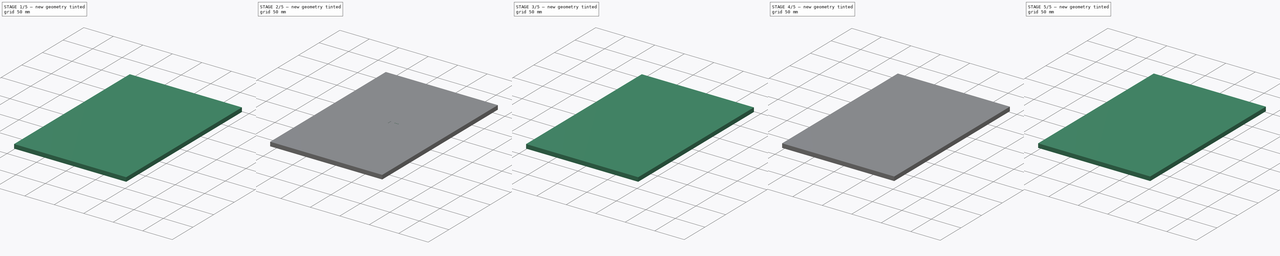
[diagram: build sequence overview — one tinted view per stage of 5, left to right]
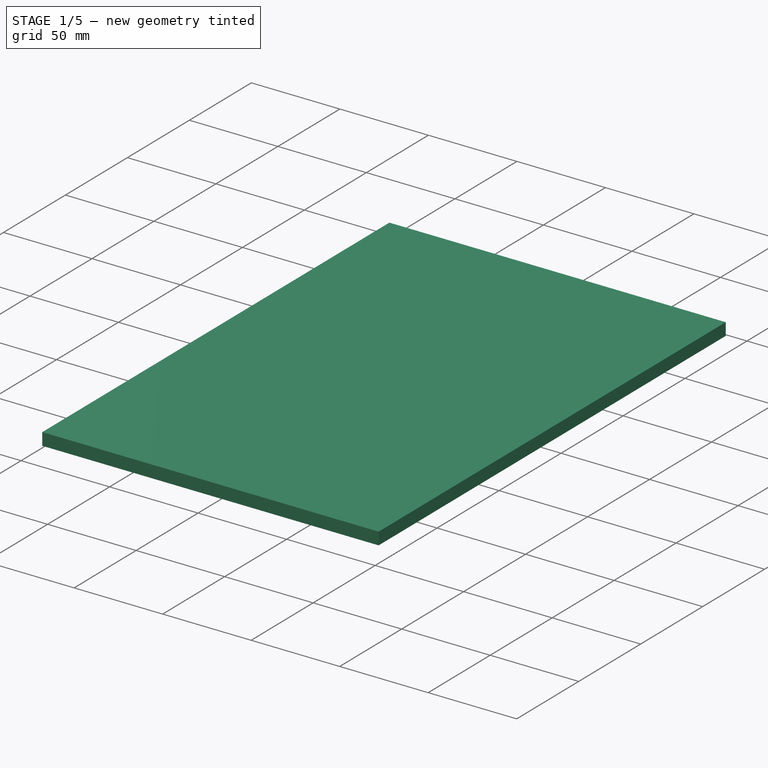
[diagram: stage 1 of 5 — iso view after this stage's code; geometry added in this stage tinted green]
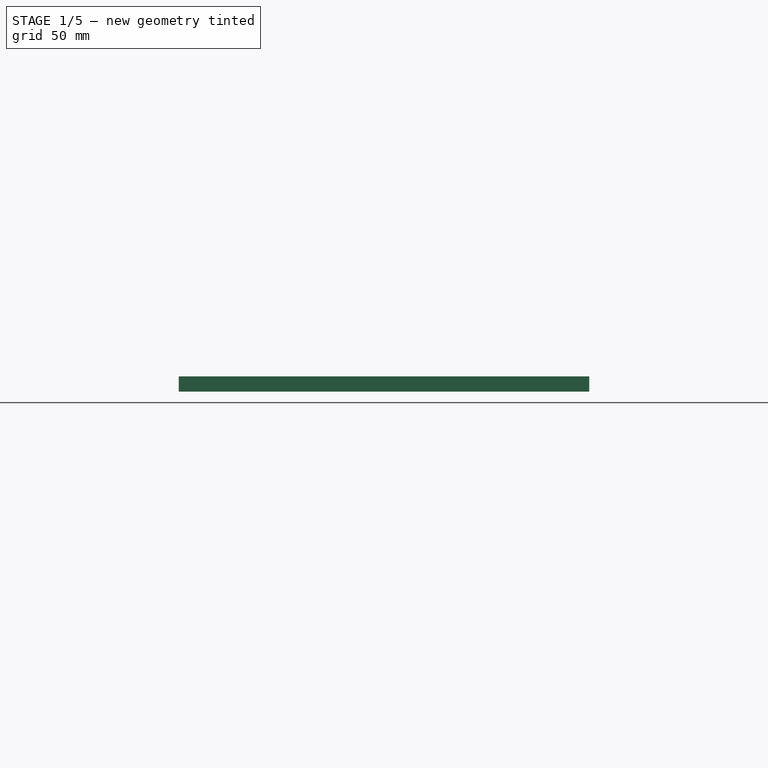
[diagram: stage 1 of 5 — front view after this stage's code; geometry added in this stage tinted green]
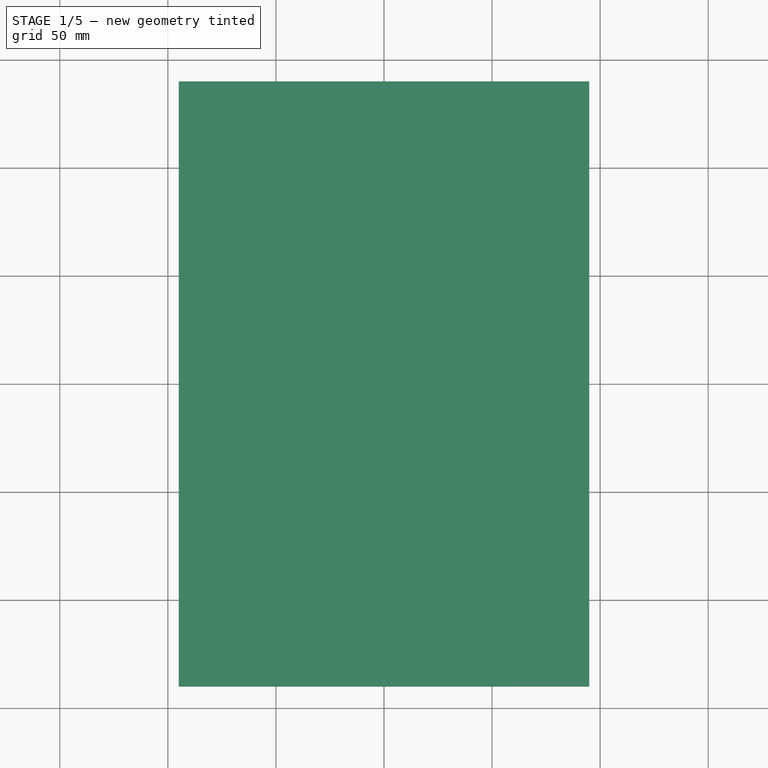
[diagram: stage 1 of 5 — top view after this stage's code; geometry added in this stage tinted green]
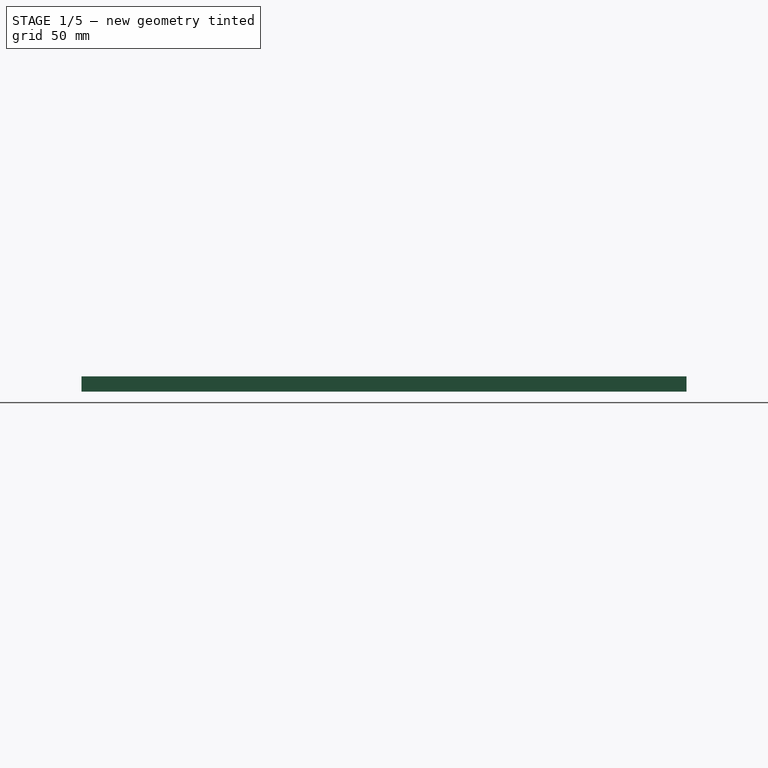
[diagram: stage 1 of 5 — right view after this stage's code; geometry added in this stage tinted green]
FCSTD DOCUMENT  (FreeCAD 0.16R6707 (Git))
Label: Alhambra-switch
License: All rights reserved
LicenseURL: http://en.wikipedia.org/wiki/All_rights_reserved
objects: Part::Feature×26, Sketcher::SketchObject×9, App::DocumentObjectGroup×7, PartDesign::Pad×5, PartDesign::Pocket×4, Part::Part2DObjectPython×2, Part::Extrusion×2, Part::MultiFuse×2, Spreadsheet::Sheet×1, Part::Cut×1, Part::FeaturePython×1
note: 61 computed .brp shape members not serialized (recipe doc carries the construction recipe); baked Part::Feature solids carry a one-line shape summary decoded from their .brp

FEATURE [Part::Feature] Clone001001  label="pins001"
  Placement = pos=(4.04,5.27,1.20028) rot=(0,0,1;0rad)
  shape: bbox 10.36 x 5.72 x 4.57 mm, 54 faces, 3 solids (baked)
FEATURE [Part::Feature] Clone002001  label="Insulators001"
  Placement = pos=(4.04,5.27,1.20028) rot=(0,0,1;0rad)
  shape: bbox 2.54 x 7.62 x 2.5 mm, 42 faces, 3 solids (baked)
FEATURE [App::DocumentObjectGroup] Group001  label="connector"
  Group = -> [Clone001001,Clone002001]
FEATURE [Sketcher::SketchObject] Sketch  label="PCB-base-sketch"
  sketch-geometry (12):
    g0: LineSegment [constr] StartX=0 StartY=0 StartZ=0 EndX=22 EndY=0 EndZ=0
    g1: LineSegment [constr] StartX=22 StartY=0 StartZ=0 EndX=22 EndY=15 EndZ=0
    g2: LineSegment [constr] StartX=22 StartY=15 StartZ=0 EndX=0 EndY=15 EndZ=0
    g3: LineSegment [constr] StartX=0 StartY=15 StartZ=0 EndX=0 EndY=0 EndZ=0
    g4: LineSegment StartX=2 StartY=15 StartZ=0 EndX=20 EndY=15 EndZ=0
    g5: LineSegment StartX=22 StartY=13 StartZ=0 EndX=22 EndY=2 EndZ=0
    g6: LineSegment StartX=20 StartY=0 StartZ=0 EndX=2 EndY=0 EndZ=0
    g7: LineSegment StartX=0 StartY=2 StartZ=0 EndX=0 EndY=13 EndZ=0
    g8: ArcOfCircle CenterX=2 CenterY=13 CenterZ=0 NormalX=0 NormalY=0 NormalZ=1 Radius=2 StartAngle=1.5708 EndAngle=3.14159
    g9: ArcOfCircle CenterX=2 CenterY=2 CenterZ=0 NormalX=0 NormalY=0 NormalZ=1 Radius=2 StartAngle=3.14159 EndAngle=4.71239
    g10: ArcOfCircle CenterX=20 CenterY=2 CenterZ=0 NormalX=0 NormalY=0 NormalZ=1 Radius=2 StartAngle=4.71239 EndAngle=6.28319
    g11: ArcOfCircle CenterX=20 CenterY=13 CenterZ=0 NormalX=0 NormalY=0 NormalZ=1 Radius=2 StartAngle=0 EndAngle=1.5708
  constraints (31):
    c: Coincident(g0,g1)
    c: Coincident(g1,g2)
    c: Coincident(g2,g3)
    c: Coincident(g3,g0)
    c: Horizontal(g0)
    c: Horizontal(g2)
    c: Vertical(g1)
    c: Vertical(g3)
    c: Coincident(g0,g-1)
    c: DistanceX(g0,g0) = 22
    c: DistanceY(g1,g1) = 15
    c: Horizontal(g4)
    c: Horizontal(g6)
    c: Vertical(g5)
    c: Vertical(g7)
    c: Tangent(g4,g8) = 1.5708
    c: Tangent(g7,g8) = 1.5708
    c: Tangent(g6,g9) = 1.5708
    c: Tangent(g7,g9) = 1.5708
    c: Tangent(g5,g10) = 1.5708
    c: Tangent(g6,g10) = 1.5708
    c: Tangent(g4,g11) = 1.5708
    c: Tangent(g5,g11) = 1.5708
    c: Equal(g8,g11)
    c: Equal(g11,g10)
    c: Equal(g10,g9)
    c: Radius(g8) = 2
    c: PointOnObject(g7,g3)
    c: PointOnObject(g4,g2)
    c: PointOnObject(g6,g0)
    c: PointOnObject(g5,g1)
FEATURE [Spreadsheet::Sheet] Spreadsheet  label="Parameters"
  cells = B2=PCB_th; C2(PCB_th)=1.2; D2=Thickness of the PCB layer; B3=Drill1_diam; C3(Drill1_diam)=1.4; D3=Drills type 1 diameter; B4=PCB_sp; C4(PCB_sp)=0.2; D4=Thickness of the PCB spacer layer; B5=PCB_ch_th_; C5(PCB_ch_th)=2; D5=Thickness of the Bottom channels; B6=PCB_top_th_; C6(PCB_top_th)=2.5; D6=Thickness of the TOP pcb
FEATURE [PartDesign::Pad] Pad  label="PCB-base"
  Length = 3.7
  Length2 = 100
  Sketch = -> Sketch
  Type = 0
  expr: Length = Parameters.PCB_top_th + Parameters.PCB_th
FEATURE [Sketcher::SketchObject] Sketch002  label="PCB-top-sketch"
  Placement = pos=(0,0,3.7) rot=(0,0,1;0rad)
  Support = -> Pad [Face10]
  sketch-geometry (4):
    g0: LineSegment StartX=0 StartY=11.9441 StartZ=0 EndX=4.8 EndY=11.9441 EndZ=0
    g1: LineSegment StartX=4.8 StartY=11.9441 StartZ=0 EndX=4.8 EndY=3.74408 EndZ=0
    g2: LineSegment StartX=4.8 StartY=3.74408 StartZ=0 EndX=0 EndY=3.74408 EndZ=0
    g3: LineSegment StartX=0 StartY=3.74408 StartZ=0 EndX=0 EndY=11.9441 EndZ=0
  constraints (11):
    c: Coincident(g0,g1)
    c: Coincident(g1,g2)
    c: Coincident(g2,g3)
    c: Coincident(g3,g0)
    c: Horizontal(g0)
    c: Horizontal(g2)
    c: Vertical(g1)
    c: Vertical(g3)
    c: PointOnObject(g0,g-2)
    c: DistanceY(g1,g1) = 8.2
    c: DistanceX(g0,g0) = 4.8
FEATURE [PartDesign::Pocket] Pocket  label="PCB-top"
  Length = 2.5
  Sketch = -> Sketch002
  Type = 0
  expr: Length = Parameters.PCB_top_th
FEATURE [App::DocumentObjectGroup] Grupo003  label="Assembly-1"
  Group = -> [Group,Clone]
FEATURE [Sketcher::SketchObject] Sketch008  label="carboard-panel-sketch"
  sketch-geometry (4):
    g0: LineSegment StartX=-95 StartY=140 StartZ=0 EndX=95 EndY=140 EndZ=0
    g1: LineSegment StartX=95 StartY=140 StartZ=0 EndX=95 EndY=-140 EndZ=0
    g2: LineSegment StartX=95 StartY=-140 StartZ=0 EndX=-95 EndY=-140 EndZ=0
    g3: LineSegment StartX=-95 StartY=-140 StartZ=0 EndX=-95 EndY=140 EndZ=0
  constraints (11):
    c: Coincident(g0,g1)
    c: Coincident(g1,g2)
    c: Coincident(g2,g3)
    c: Coincident(g3,g0)
    c: Horizontal(g0)
    c: Horizontal(g2)
    c: Vertical(g1)
    c: Vertical(g3)
    c: Symmetric(g0,g1,g-1)
    c: DistanceX(g0,g0) = 190
    c: DistanceY(g1,g1) = 280
FEATURE [PartDesign::Pad] Pad003008  label="carboard-panel"
  Length = 7
  Length2 = 100
  Sketch = -> Sketch008
  Type = 0
FEATURE [Part::Feature] Part__Feature011  label="Board-clampx4"
  Placement = pos=(-25,-109,7) rot=(0,0,1;0rad)
  shape: bbox 92 x 14 x 7.5 mm, 96 faces (baked)
FEATURE [Part::Feature] Compound002002021  label="white-pushpin004"
  Placement = pos=(52.4976,-157.033,7) rot=(0,0,1;0rad)
  shape: bbox 11.26 x 11.26 x 8.7 mm, 14 faces, 2 solids (baked)
FEATURE [Part::Feature] Compound002002023  label="white-pushpin006"
  Placement = pos=(-25.5024,-157.033,7) rot=(0,0,1;0rad)
  shape: bbox 11.26 x 11.26 x 8.7 mm, 14 faces, 2 solids (baked)
FEATURE [Part::Feature] Compound002002024001  label="female-conn"
  Placement = pos=(-17.82,-116,9.33944) rot=(0,0,-1;1.5708rad)
  shape: bbox 7.9 x 15.3 x 6.24 mm, 211 faces, 4 solids (baked)
FEATURE [Part::Feature] Compound002002024002001  label="Alhambra-switch-003"
  Placement = pos=(-17.82,-116,9.33944) rot=(0,0,-1;1.5708rad)
  shape: bbox 15 x 28 x 13.54 mm, 284 faces, 12 solids (baked)
FEATURE [Part::Feature] Compound002002024002002  label="female-conn001"
  Placement = pos=(30.18,-116,9.33944) rot=(0,0,-1;1.5708rad)
  shape: bbox 7.9 x 15.3 x 6.24 mm, 211 faces, 4 solids (baked)
FEATURE [Part::Feature] Compound002002024002003  label="Alhambra-switch-004"
  Placement = pos=(30.18,-116,9.33944) rot=(0,0,-1;1.5708rad)
  shape: bbox 15 x 28 x 13.54 mm, 284 faces, 12 solids (baked)
FEATURE [Part::Feature] Compound002002024002004  label="female-conn002"
  Placement = pos=(14.18,-116,9.33944) rot=(0,0,-1;1.5708rad)
  shape: bbox 7.9 x 15.3 x 6.24 mm, 211 faces, 4 solids (baked)
FEATURE [Part::Feature] Compound002002024002005  label="Alhambra-switch-005"
  Placement = pos=(14.18,-116,9.33944) rot=(0,0,-1;1.5708rad)
  shape: bbox 15 x 28 x 13.54 mm, 284 faces, 12 solids (baked)
FEATURE [Part::Feature] Compound002002024002006  label="female-conn003"
  Placement = pos=(-1.82,-116,9.33944) rot=(0,0,-1;1.5708rad)
  shape: bbox 7.9 x 15.3 x 6.24 mm, 211 faces, 4 solids (baked)
FEATURE [Part::Feature] Compound002002024002007  label="Alhambra-switch-006"
  Placement = pos=(-1.82,-116,9.33944) rot=(0,0,-1;1.5708rad)
  shape: bbox 15 x 28 x 13.54 mm, 284 faces, 12 solids (baked)
FEATURE [Part::Feature] Compound001  label="Alhambra-led-1"
  Placement = pos=(34.9308,-57,6.364) rot=(0,0,-1;1.5708rad)
  shape: bbox 15 x 34.9 x 12.34 mm, 444 faces, 26 solids (baked)
FEATURE [Part::Feature] Compound002002024002008  label="female-conn004"
  Placement = pos=(34.6208,-56.0586,9.11972) rot=(0,0,-1;1.5708rad)
  shape: bbox 7.9 x 15.3 x 6.24 mm, 211 faces, 4 solids (baked)
FEATURE [Part::Feature] Part__Feature012  label="Board-clampx005"
  Placement = pos=(-20.5692,-49.0586,7) rot=(0,0,1;0rad)
  shape: bbox 92 x 14 x 7.5 mm, 96 faces (baked)
FEATURE [App::DocumentObjectGroup] Grupo004  label="Assembly-2"
  Group = -> [Part__Feature011,Compound002002021,Compound002002023,Compound002002024001,Compound002002024002007,Compound002002024002006,Compound002002024002005,Compound002002024002004,Compound002002024002003,Compound002002024002002,Compound002002024002001,Compound001,Compound002002024002008,Part__Feature012,Pad003008]
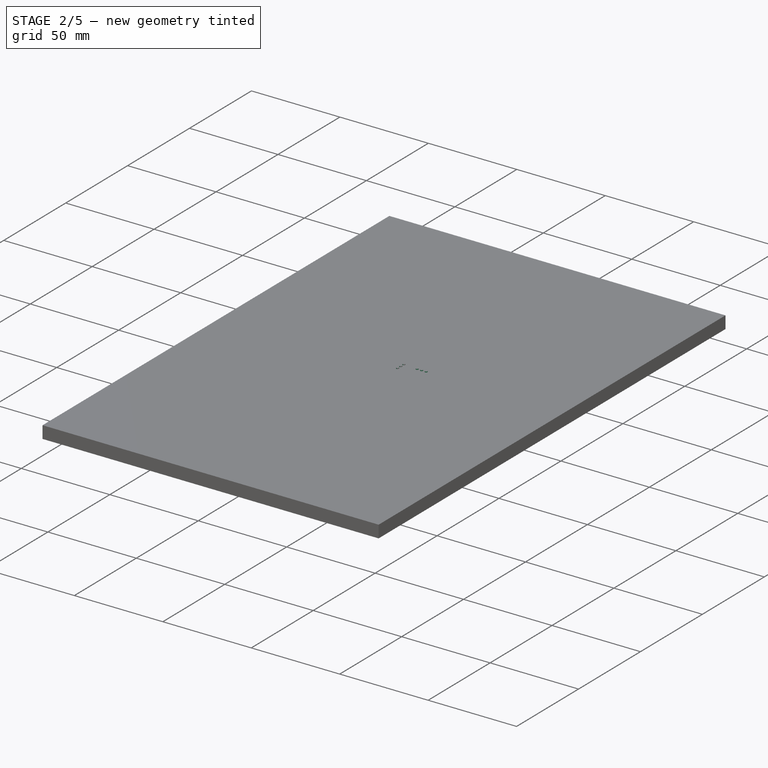
[diagram: stage 2 of 5 — iso view after this stage's code; geometry added in this stage tinted green]
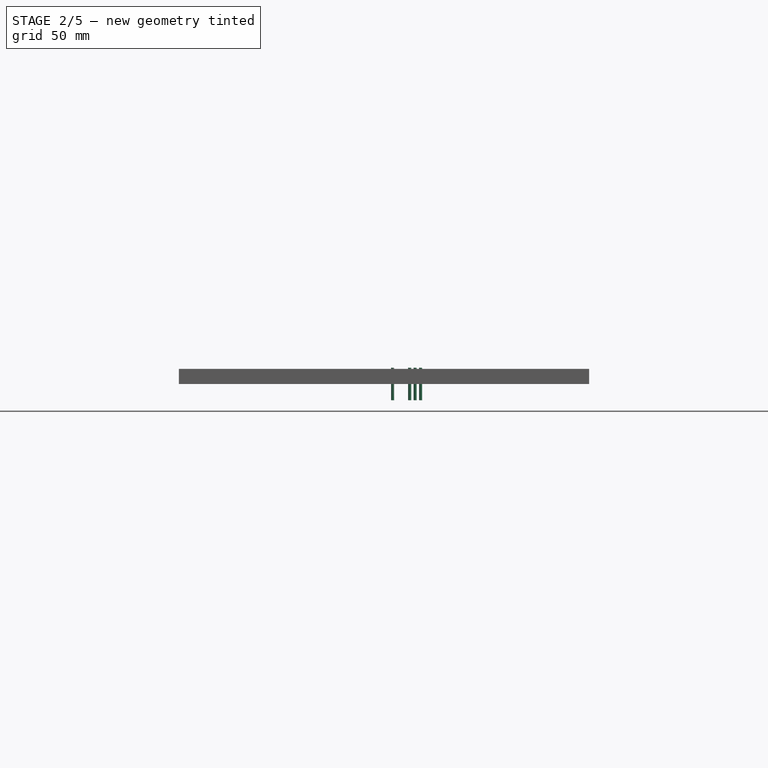
[diagram: stage 2 of 5 — front view after this stage's code; geometry added in this stage tinted green]
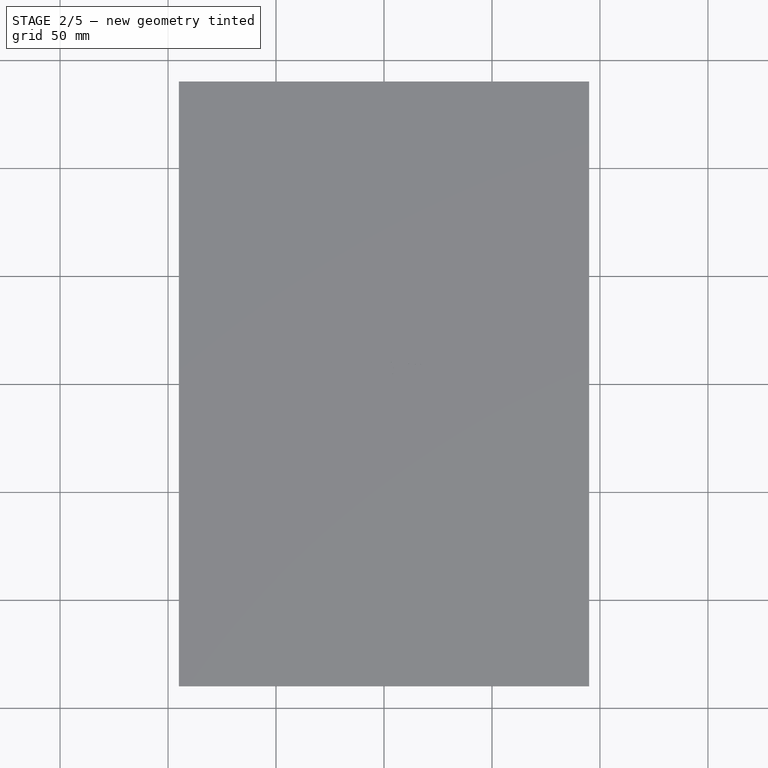
[diagram: stage 2 of 5 — top view after this stage's code; geometry added in this stage tinted green]
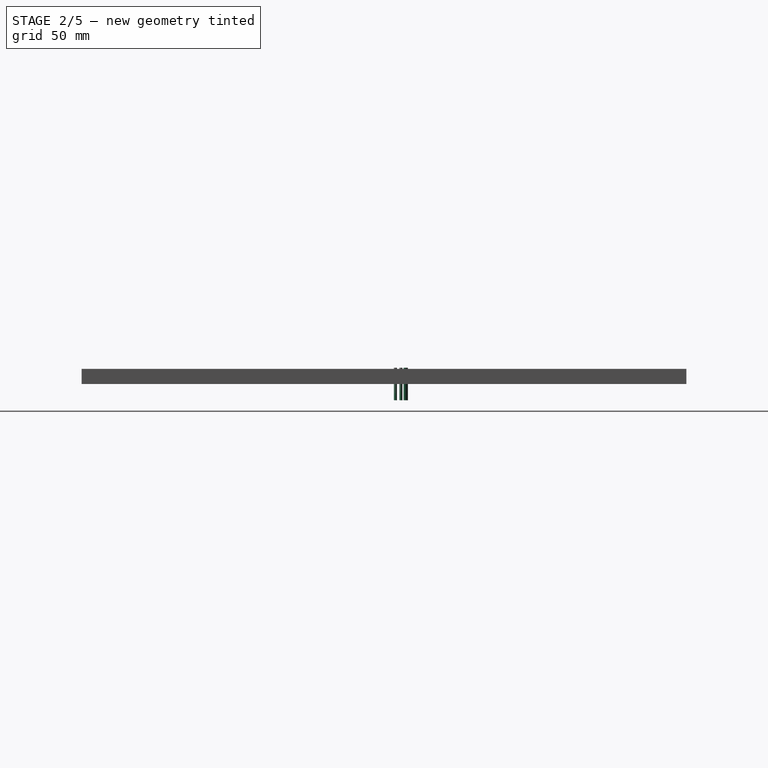
[diagram: stage 2 of 5 — right view after this stage's code; geometry added in this stage tinted green]
FEATURE [Sketcher::SketchObject] Sketch001  label="drills-sketch"
  Placement = pos=(-0.00699069,-0.0292359,0) rot=(0,0,1;0rad)
  expr: Constraints[14] = 2.54 * 2
  expr: Constraints[2] = Parameters.Drill1_diam / 2
  expr: Constraints[1] = 2.54 * 2
  sketch-geometry (9):
    g0: Circle CenterX=11.9 CenterY=9.78 CenterZ=0 NormalX=0 NormalY=0 NormalZ=1 Radius=0.7
    g1: LineSegment [constr] StartX=4 StartY=10.38 StartZ=0 EndX=4 EndY=5.3 EndZ=0
    g2: Circle CenterX=4 CenterY=10.38 CenterZ=0 NormalX=0 NormalY=0 NormalZ=1 Radius=0.7
    g3: Circle CenterX=4 CenterY=7.84 CenterZ=0 NormalX=0 NormalY=0 NormalZ=1 Radius=0.7
    g4: Circle CenterX=4 CenterY=5.3 CenterZ=0 NormalX=0 NormalY=0 NormalZ=1 Radius=0.7
    g5: LineSegment [constr] StartX=11.9 StartY=9.78 StartZ=0 EndX=16.98 EndY=9.78 EndZ=0
    g6: Circle CenterX=14.44 CenterY=9.78 CenterZ=0 NormalX=0 NormalY=0 NormalZ=1 Radius=0.7
    g7: Circle CenterX=16.98 CenterY=9.78 CenterZ=0 NormalX=0 NormalY=0 NormalZ=1 Radius=0.7
    g8: LineSegment [constr] StartX=14.44 StartY=13.78 StartZ=0 EndX=14.44 EndY=9.78 EndZ=0
  constraints (25):
    c: Vertical(g1)
    c: DistanceY(g1,g1) = 5.08
    c: Radius(g0) = 0.7
    c: Coincident(g2,g1)
    c: Coincident(g4,g1)
    c: Equal(g4,g3)
    c: Equal(g3,g2)
    c: Equal(g2,g0)
    c: PointOnObject(g3,g1)
    c: DistanceY(g3,g1) = 2.54
    c: DistanceX(g-1,g1) = 4
    c: DistanceY(g-1,g1) = 5.3
    c: Horizontal(g5)
    c: Coincident(g0,g5)
    c: DistanceX(g5,g5) = 5.08
    c: DistanceX(g1,g0) = 7.9
    c: DistanceY(g0,g1) = 0.6
    c: Coincident(g7,g5)
    c: Vertical(g8)
    c: PointOnObject(g8,g5)
    c: Symmetric(g0,g5,g8)
    c: Coincident(g6,g8)
    c: Equal(g0,g6)
    c: Equal(g6,g7)
    c: DistanceY(g8,g8) = 4
FEATURE [PartDesign::Pad] Pad003005  label="Drills-map"
  Length = 15
  Length2 = 100
  Midplane = true
  Placement = pos=(-0.00699069,-0.0292359,0) rot=(0,0,1;0rad)
  Sketch = -> Sketch001
  Type = 0
FEATURE [Part::Feature] Clone005  label="body001"
  Placement = pos=(14.4349,8.51516,0.5) rot=(-1,0,0;1.5708rad)
  shape: bbox 10 x 2.5 x 5 mm, 47 faces (baked)
FEATURE [Part::Feature] Clone003001  label="pins002"
  Placement = pos=(14.4349,8.51516,0.5) rot=(-1,0,0;1.5708rad)
  shape: bbox 5.7 x 0.6 x 7.5 mm, 9 faces, 3 solids (baked)
FEATURE [Part::Feature] Clone004001  label="head001"
  Placement = pos=(15.2349,8.51516,6.21) rot=(-1,0,0;1.5708rad)
  shape: bbox 8.4 x 2.5 x 1.535 mm, 42 faces (baked)
FEATURE [Sketcher::SketchObject] Sketch005  label="PCB-top2-sketch"
  Placement = pos=(0,0,3.7) rot=(0,0,1;0rad)
  Support = -> Pocket [Face4]
  sketch-geometry (6):
    g0: LineSegment StartX=7.38873 StartY=13.6637 StartZ=0 EndX=19.2125 EndY=13.6637 EndZ=0
    g1: LineSegment StartX=21.2125 StartY=11.6637 StartZ=0 EndX=21.2125 EndY=3.32563 EndZ=0
    g2: LineSegment StartX=19.2125 StartY=1.32563 StartZ=0 EndX=7.38873 EndY=1.32563 EndZ=0
    g3: LineSegment StartX=7.38873 StartY=1.32563 StartZ=0 EndX=7.38873 EndY=13.6637 EndZ=0
    g4: ArcOfCircle CenterX=19.2125 CenterY=3.32563 CenterZ=0 NormalX=0 NormalY=0 NormalZ=1 Radius=2 StartAngle=4.71239 EndAngle=6.28319
    g5: ArcOfCircle CenterX=19.2125 CenterY=11.6637 CenterZ=0 NormalX=0 NormalY=0 NormalZ=1 Radius=2 StartAngle=0 EndAngle=1.5708
  constraints (12):
    c: Coincident(g2,g3)
    c: Coincident(g3,g0)
    c: Horizontal(g0)
    c: Horizontal(g2)
    c: Vertical(g1)
    c: Vertical(g3)
    c: Tangent(g1,g4) = 1.5708
    c: Tangent(g2,g4) = 1.5708
    c: Tangent(g0,g5) = 1.5708
    c: Tangent(g1,g5) = 1.5708
    c: Equal(g5,g4)
    c: Radius(g5) = 2
FEATURE [PartDesign::Pad] Pad003007  label="PCB-top2"
  Length = 2
  Length2 = 100
  Sketch = -> Sketch005
  Type = 0
FEATURE [Sketcher::SketchObject] Sketch006  label="PCB-top3-sketch"
  Placement = pos=(0,0,5.7) rot=(0,0,1;0rad)
  Support = -> Pad003007 [Face21]
  sketch-geometry (4):
    g0: LineSegment StartX=8.9 StartY=11.3 StartZ=0 EndX=19.9 EndY=11.3 EndZ=0
    g1: LineSegment StartX=19.9 StartY=11.3 StartZ=0 EndX=19.9 EndY=8.3 EndZ=0
    g2: LineSegment StartX=19.9 StartY=8.3 StartZ=0 EndX=8.9 EndY=8.3 EndZ=0
    g3: LineSegment StartX=8.9 StartY=8.3 StartZ=0 EndX=8.9 EndY=11.3 EndZ=0
  constraints (12):
    c: Coincident(g0,g1)
    c: Coincident(g1,g2)
    c: Coincident(g2,g3)
    c: Coincident(g3,g0)
    c: Horizontal(g0)
    c: Horizontal(g2)
    c: Vertical(g1)
    c: Vertical(g3)
    c: DistanceX(g2,g2) = 11
    c: DistanceY(g1,g1) = 3
    c: DistanceX(g-1,g2) = 8.9
    c: DistanceY(g-1,g2) = 8.3
FEATURE [PartDesign::Pocket] Pocket002  label="PCB-top3"
  Length = 4.5
  Sketch = -> Sketch006
  Type = 0
  UpToFace = -> Pad003007 [Face6]
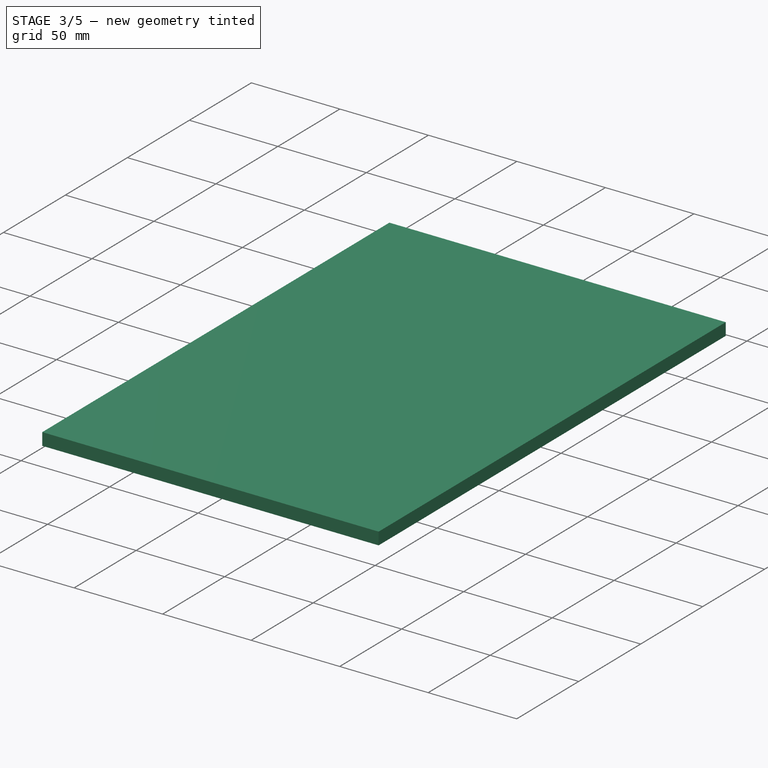
[diagram: stage 3 of 5 — iso view after this stage's code; geometry added in this stage tinted green]
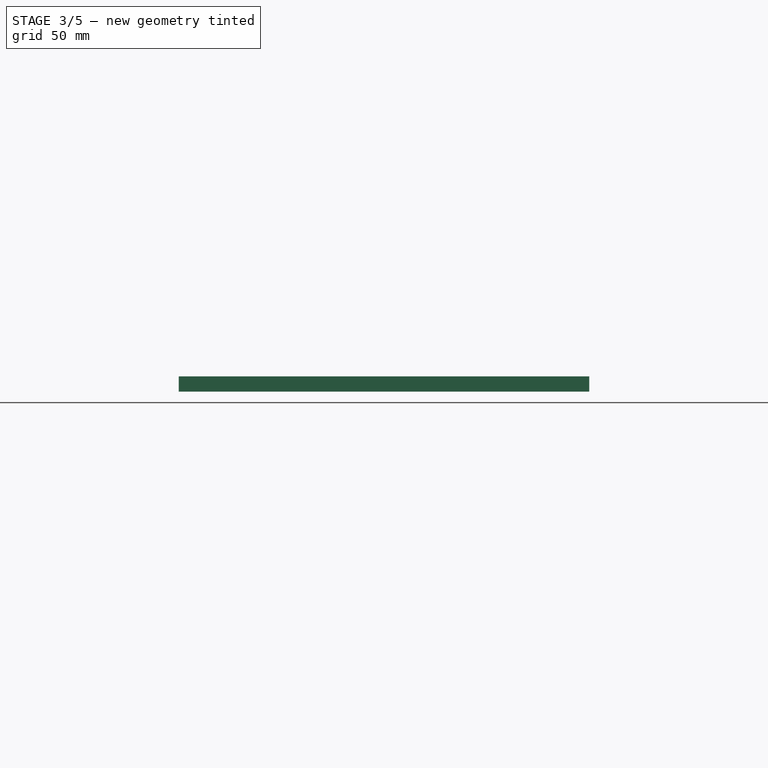
[diagram: stage 3 of 5 — front view after this stage's code; geometry added in this stage tinted green]
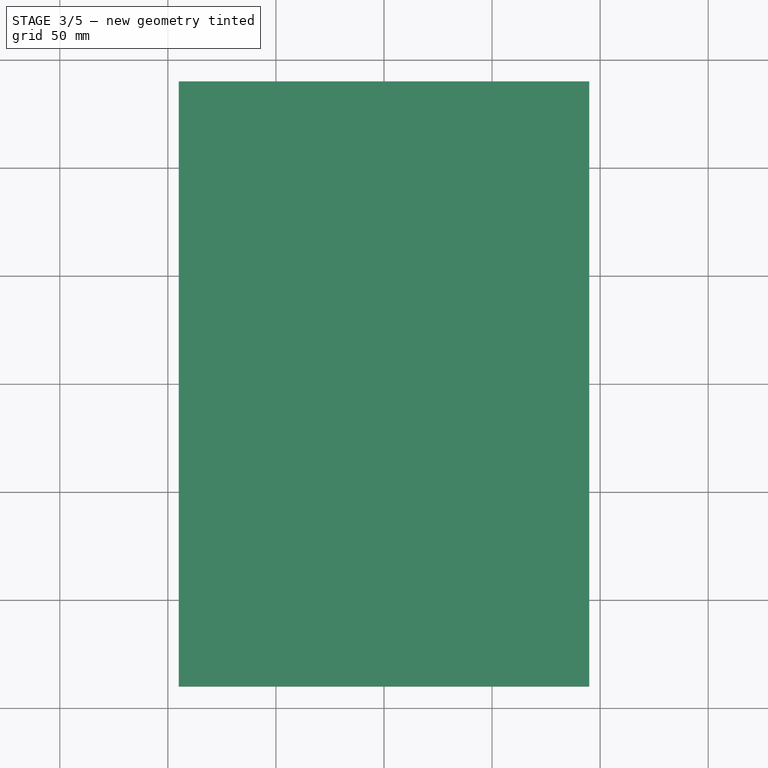
[diagram: stage 3 of 5 — top view after this stage's code; geometry added in this stage tinted green]
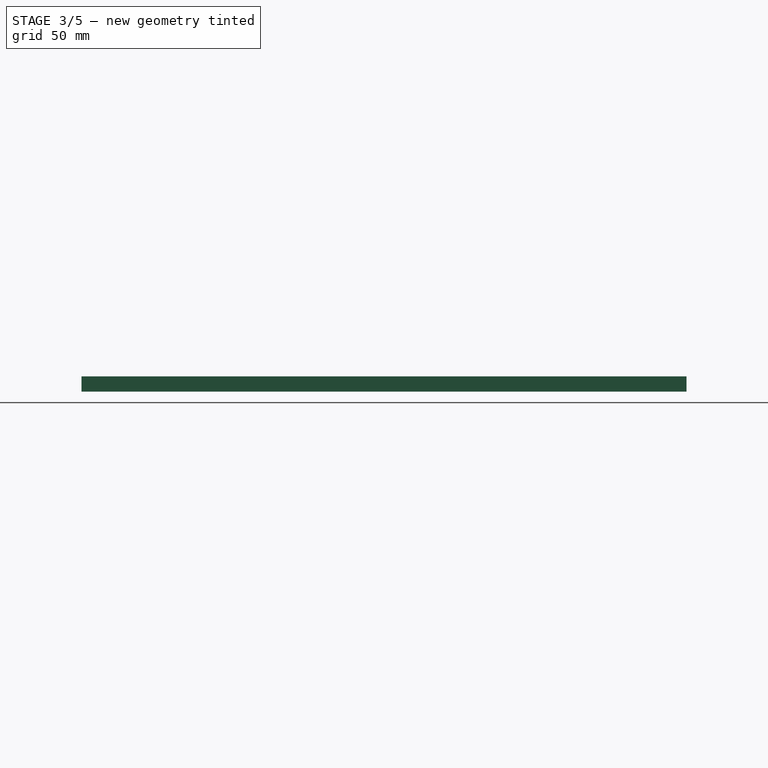
[diagram: stage 3 of 5 — right view after this stage's code; geometry added in this stage tinted green]
FEATURE [Part::Part2DObjectPython] ShapeString  label="Text-1"  # Draft 2D object (typed FeaturePython)
  FontFile = <userpath>/develop/PCBprint/Alhambra-switch/OpenSans-Bold.ttf
  Placement = pos=(12.6584,2.29066,5.7) rot=(0,0,1;1.5708rad)
  Size = 6
  String = 1
  Tracking = 0
FEATURE [Part::Part2DObjectPython] ShapeString001  label="Text-002"  # Draft 2D object (typed FeaturePython)
  FontFile = <userpath>/develop/PCBprint/Alhambra-switch/OpenSans-Bold.ttf
  Placement = pos=(19.9704,2.6547,5.7) rot=(0,0,1;1.5708rad)
  Size = 6
  String = 0
  Tracking = 0
FEATURE [Part::Extrusion] Extrude  label="Text-3D-1"
  Base = -> ShapeString
  Dir = (0,0,0.5)
  Solid = true
FEATURE [Part::Extrusion] Extrude001  label="Text-3D-2"
  Base = -> ShapeString001
  Dir = (0,0,0.5)
  Solid = true
FEATURE [Part::Cut] Cut  label="PCB-top-drills"
  Base = -> Pocket002
  Tool = -> Pad003005
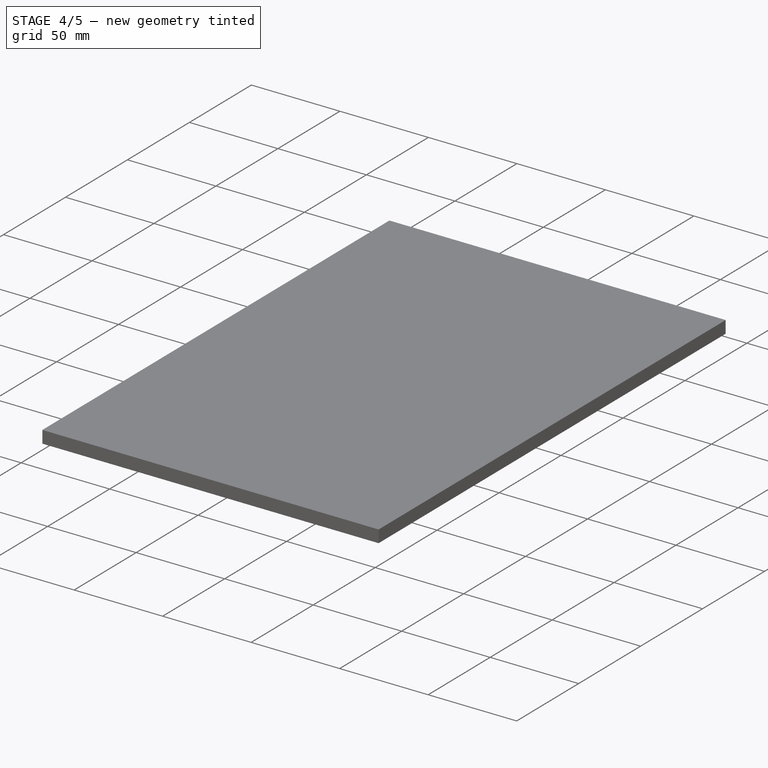
[diagram: stage 4 of 5 — iso view after this stage's code; geometry added in this stage tinted green]
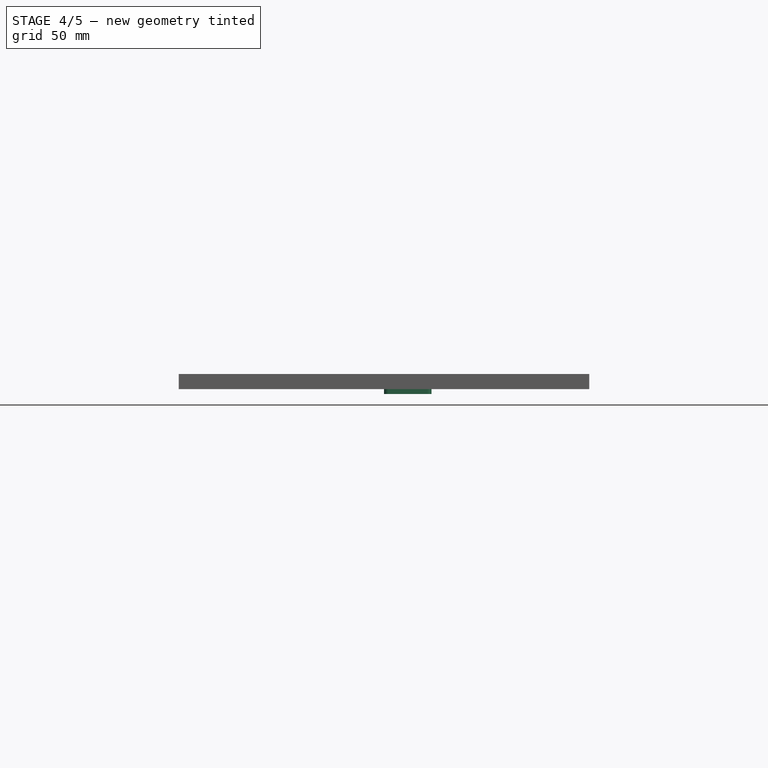
[diagram: stage 4 of 5 — front view after this stage's code; geometry added in this stage tinted green]
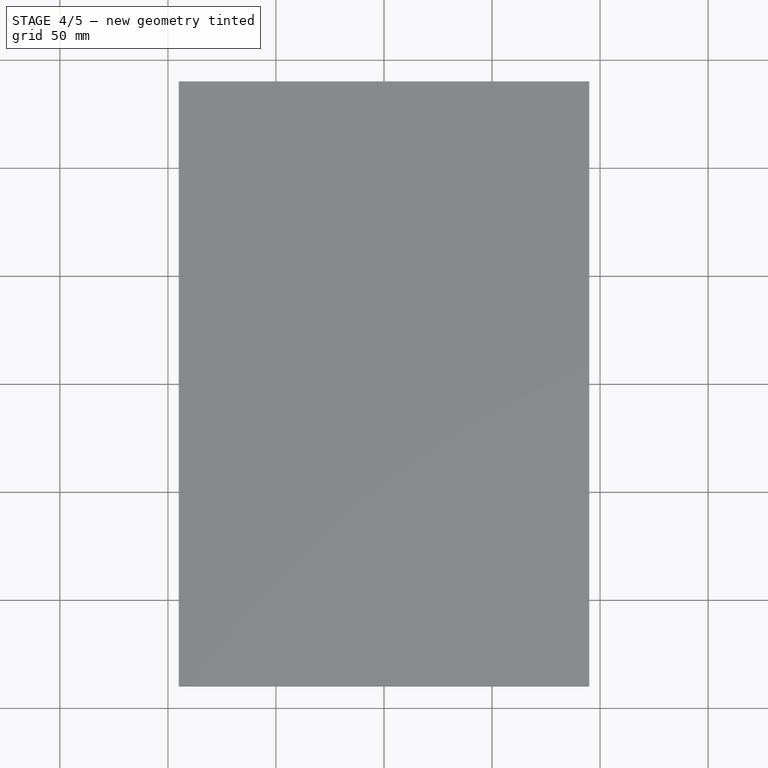
[diagram: stage 4 of 5 — top view after this stage's code; geometry added in this stage tinted green]
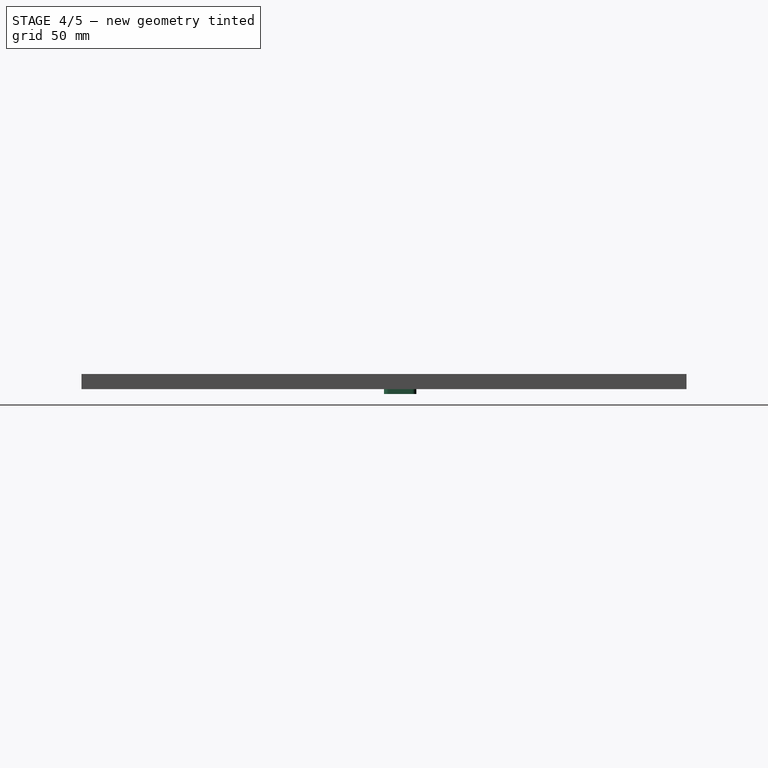
[diagram: stage 4 of 5 — right view after this stage's code; geometry added in this stage tinted green]
FEATURE [Sketcher::SketchObject] Sketch003  label="PCB-base-bottom"
  sketch-geometry (12):
    g0: LineSegment [constr] StartX=0 StartY=0 StartZ=0 EndX=22 EndY=0 EndZ=0
    g1: LineSegment [constr] StartX=22 StartY=0 StartZ=0 EndX=22 EndY=15 EndZ=0
    g2: LineSegment [constr] StartX=22 StartY=15 StartZ=0 EndX=0 EndY=15 EndZ=0
    g3: LineSegment [constr] StartX=0 StartY=15 StartZ=0 EndX=0 EndY=0 EndZ=0
    g4: LineSegment StartX=2 StartY=15 StartZ=0 EndX=20 EndY=15 EndZ=0
    g5: LineSegment StartX=22 StartY=13 StartZ=0 EndX=22 EndY=2 EndZ=0
    g6: LineSegment StartX=20 StartY=0 StartZ=0 EndX=2 EndY=0 EndZ=0
    g7: LineSegment StartX=0 StartY=2 StartZ=0 EndX=0 EndY=13 EndZ=0
    g8: ArcOfCircle CenterX=2 CenterY=13 CenterZ=0 NormalX=0 NormalY=0 NormalZ=1 Radius=2 StartAngle=1.5708 EndAngle=3.14159
    g9: ArcOfCircle CenterX=2 CenterY=2 CenterZ=0 NormalX=0 NormalY=0 NormalZ=1 Radius=2 StartAngle=3.14159 EndAngle=4.71239
    g10: ArcOfCircle CenterX=20 CenterY=2 CenterZ=0 NormalX=0 NormalY=0 NormalZ=1 Radius=2 StartAngle=4.71239 EndAngle=6.28319
    g11: ArcOfCircle CenterX=20 CenterY=13 CenterZ=0 NormalX=0 NormalY=0 NormalZ=1 Radius=2 StartAngle=0 EndAngle=1.5708
  constraints (31):
    c: Coincident(g0,g1)
    c: Coincident(g1,g2)
    c: Coincident(g2,g3)
    c: Coincident(g3,g0)
    c: Horizontal(g0)
    c: Horizontal(g2)
    c: Vertical(g1)
    c: Vertical(g3)
    c: Coincident(g0,g-1)
    c: DistanceX(g0,g0) = 22
    c: DistanceY(g1,g1) = 15
    c: Horizontal(g4)
    c: Horizontal(g6)
    c: Vertical(g5)
    c: Vertical(g7)
    c: Tangent(g4,g8) = 1.5708
    c: Tangent(g7,g8) = 1.5708
    c: Tangent(g6,g9) = 1.5708
    c: Tangent(g7,g9) = 1.5708
    c: Tangent(g5,g10) = 1.5708
    c: Tangent(g6,g10) = 1.5708
    c: Tangent(g4,g11) = 1.5708
    c: Tangent(g5,g11) = 1.5708
    c: Equal(g8,g11)
    c: Equal(g11,g10)
    c: Equal(g10,g9)
    c: Radius(g8) = 2
    c: PointOnObject(g7,g3)
    c: PointOnObject(g4,g2)
    c: PointOnObject(g6,g0)
    c: PointOnObject(g5,g1)
FEATURE [PartDesign::Pad] Pad003006  label="PCB-bottom"
  Length = 2.2
  Length2 = 100
  Reversed = true
  Sketch = -> Sketch003
  Type = 0
  expr: Length = Parameters.PCB_sp + Parameters.PCB_ch_th
FEATURE [Sketcher::SketchObject] Sketch004  label="PCB-channels-sketch"
  Placement = pos=(0,0,-2.2) rot=(1,0,0;3.14159rad)
  Support = -> Pad003006 [Face10]
  sketch-geometry (16):
    g0: LineSegment StartX=2.04278 StartY=-11.0873 StartZ=0 EndX=2.04278 EndY=-3.28831 EndZ=0
    g1: LineSegment StartX=2.04278 StartY=-11.0873 StartZ=0 EndX=4.86047 EndY=-14.0951 EndZ=0
    g2: LineSegment StartX=4.86047 StartY=-14.0951 StartZ=0 EndX=15.7141 EndY=-14.0951 EndZ=0
    g3: LineSegment StartX=18.2979 StartY=-3.28831 StartZ=0 EndX=18.2979 EndY=-11.4533 EndZ=0
    g4: LineSegment StartX=2.04278 StartY=-3.28831 StartZ=0 EndX=18.2979 EndY=-3.28831 EndZ=0
    g5: LineSegment StartX=12.9819 StartY=-10.8695 StartZ=0 EndX=12.9819 EndY=-12.0986 EndZ=0
    g6: LineSegment StartX=12.9819 StartY=-12.0986 StartZ=0 EndX=7.08213 EndY=-12.0986 EndZ=0
    g7: LineSegment StartX=7.08213 StartY=-12.0986 StartZ=0 EndX=7.08213 EndY=-9.76328 EndZ=0
    g8: LineSegment StartX=12.9819 StartY=-10.8695 StartZ=0 EndX=9.78619 EndY=-10.8695 EndZ=0
    g9: LineSegment StartX=9.78619 StartY=-10.8695 StartZ=0 EndX=7.08213 EndY=-9.76328 EndZ=0
    g10: LineSegment StartX=10.0012 StartY=-5.71707 StartZ=0 EndX=11.3533 EndY=-8.16543 EndZ=0
    g11: LineSegment StartX=11.3533 StartY=-8.16543 StartZ=0 EndX=14.2725 EndY=-8.16543 EndZ=0
    g12: LineSegment StartX=14.2725 StartY=-8.16543 StartZ=0 EndX=14.2725 EndY=-5.71707 EndZ=0
    g13: LineSegment StartX=14.2725 StartY=-5.71707 StartZ=0 EndX=10.0012 EndY=-5.71707 EndZ=0
    g14: LineSegment StartX=15.7141 StartY=-14.0951 StartZ=0 EndX=15.7141 EndY=-11.4533 EndZ=0
    g15: LineSegment StartX=15.7141 StartY=-11.4533 StartZ=0 EndX=18.2979 EndY=-11.4533 EndZ=0
  constraints (29):
    c: Vertical(g0)
    c: Coincident(g0,g1)
    c: Coincident(g1,g2)
    c: Horizontal(g2)
    c: Vertical(g3)
    c: Coincident(g4,g3)
    c: Horizontal(g4)
    c: Coincident(g4,g0)
    c: Coincident(g5,g6)
    c: Coincident(g6,g7)
    c: Horizontal(g6)
    c: Vertical(g5)
    c: Vertical(g7)
    c: Coincident(g5,g8)
    c: Horizontal(g8)
    c: Coincident(g8,g9)
    c: Coincident(g7,g9)
    c: Coincident(g10,g11)
    c: Horizontal(g11)
    c: Coincident(g11,g12)
    c: Vertical(g12)
    c: Coincident(g12,g13)
    c: Coincident(g13,g10)
    c: Horizontal(g13)
    c: Coincident(g2,g14)
    c: Vertical(g14)
    c: Coincident(g14,g15)
    c: Coincident(g15,g3)
    c: Horizontal(g15)
FEATURE [PartDesign::Pocket] Pocket001  label="PCB-channels"
  Length = 2
  Sketch = -> Sketch004
  Type = 0
  expr: Length = Parameters.PCB_ch_th
FEATURE [Part::MultiFuse] Fusion  label="PCB-top-text-drills"
  Shapes = -> [Extrude,Extrude001,Cut]
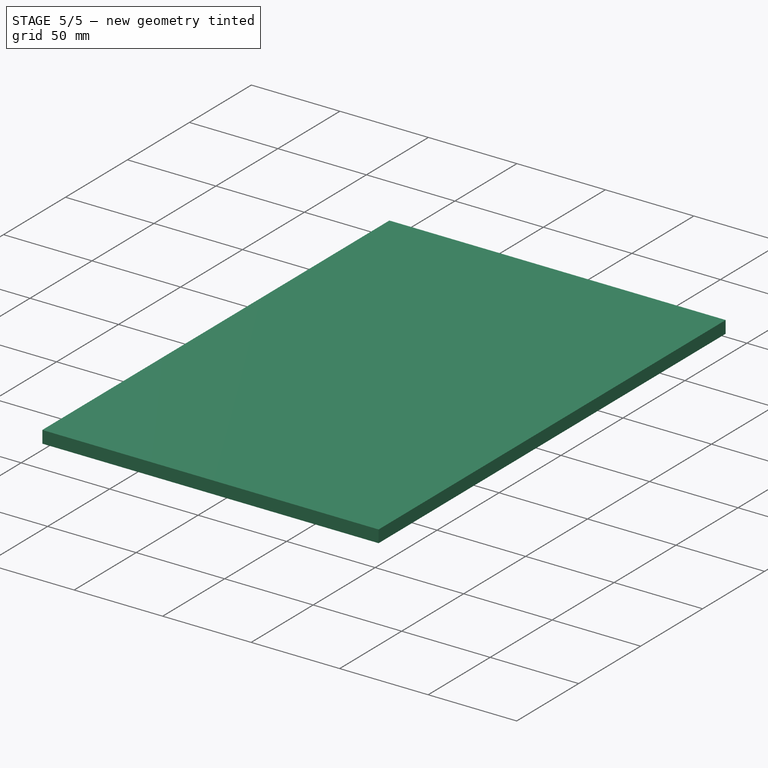
[diagram: stage 5 of 5 — iso view after this stage's code; geometry added in this stage tinted green]
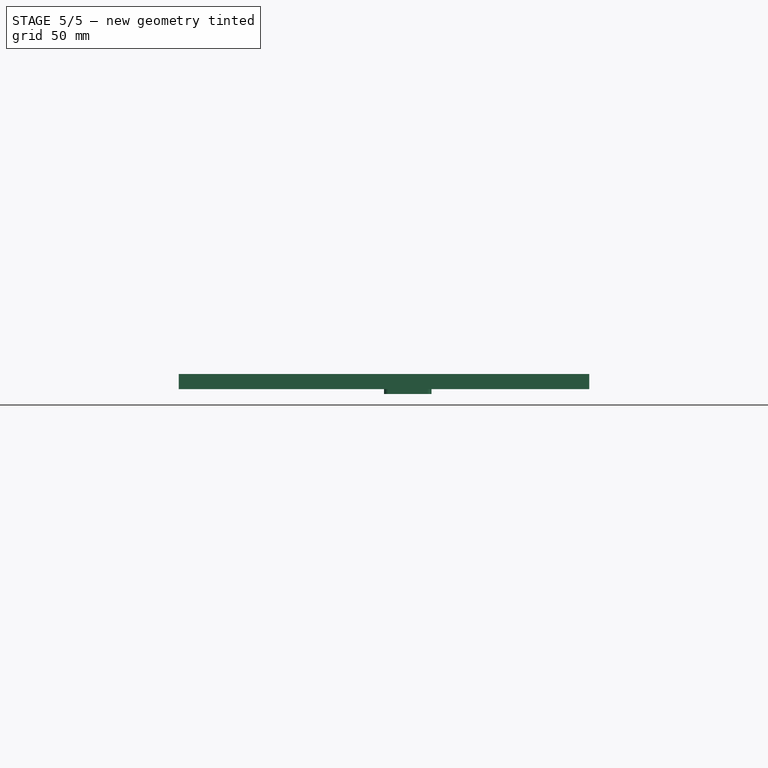
[diagram: stage 5 of 5 — front view after this stage's code; geometry added in this stage tinted green]
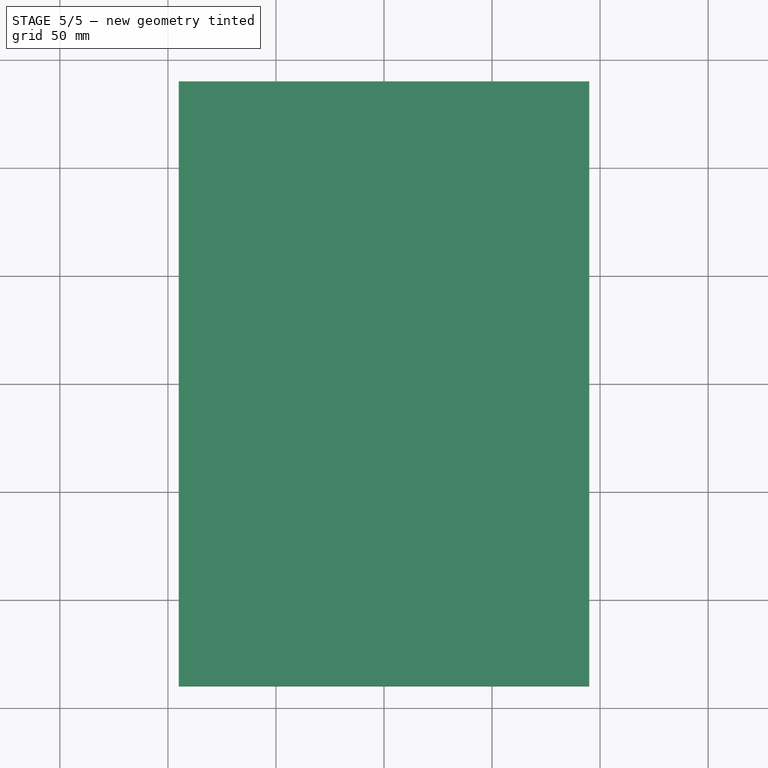
[diagram: stage 5 of 5 — top view after this stage's code; geometry added in this stage tinted green]
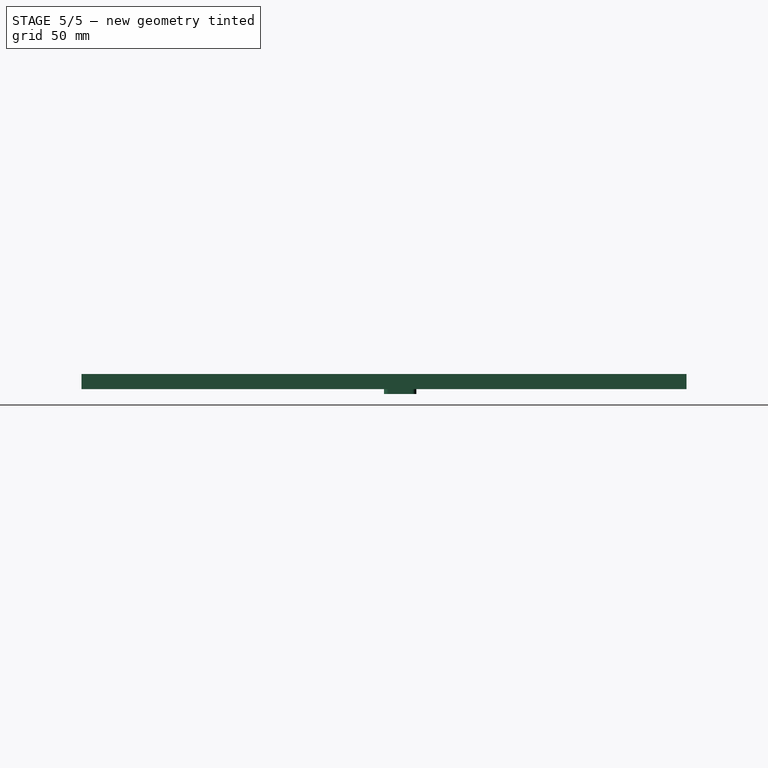
[diagram: stage 5 of 5 — right view after this stage's code; geometry added in this stage tinted green]
FEATURE [Part::MultiFuse] Fusion001  label="PCB-final1"
  Shapes = -> [Pocket001,Fusion]
FEATURE [Part::Feature] Part__Feature  label="Connector"
  Placement = pos=(-15.3,7.81,2.45028) rot=(0,0,1;0rad)
  shape: bbox 15.3 x 7.9 x 6.24 mm, 133 faces (baked)
FEATURE [Part::Feature] Part__Feature001  label="pins"
  Placement = pos=(-15.3,7.81,2.45028) rot=(0,0,1;0rad)
  shape: bbox 12.6 x 1.5 x 1.959 mm, 26 faces (baked)
FEATURE [Part::Feature] Part__Feature002  label="pins003"
  Placement = pos=(-15.3,7.81,2.45028) rot=(0,0,1;0rad)
  shape: bbox 12.6 x 1.5 x 1.959 mm, 26 faces (baked)
FEATURE [Part::Feature] Part__Feature003  label="pins004"
  Placement = pos=(-15.3,7.81,2.45028) rot=(0,0,1;0rad)
  shape: bbox 12.6 x 1.5 x 1.959 mm, 26 faces (baked)
FEATURE [Part::Feature] Part__Feature004  label="vcc-wire"
  Placement = pos=(-10.15,7.81,2.45028) rot=(0,-1,0;1.5708rad)
  shape: bbox 20 x 1.4 x 1.4 mm, 3 faces (baked)
FEATURE [Part::Feature] Part__Feature005  label="vcc-signal"
  Placement = pos=(-10.15,10.35,2.45028) rot=(0,-1,0;1.5708rad)
  shape: bbox 20 x 1.4 x 1.4 mm, 3 faces (baked)
FEATURE [Part::Feature] Part__Feature006  label="wire-gnd"
  Placement = pos=(-10.15,5.27,2.45028) rot=(0,-1,0;1.5708rad)
  shape: bbox 20 x 1.4 x 1.4 mm, 3 faces (baked)
FEATURE [App::DocumentObjectGroup] Grupo  label="Female-connector"
  Group = -> [Part__Feature,Part__Feature001,Part__Feature002,Part__Feature003,Part__Feature004,Part__Feature005,Part__Feature006]
FEATURE [App::DocumentObjectGroup] Grupo001  label="Switch"
  Group = -> [Clone005,Clone003001,Clone004001]
FEATURE [App::DocumentObjectGroup] Group  label="Electronic-components"
  Group = -> [Group001,Grupo,Grupo001]
FEATURE [Sketcher::SketchObject] Sketch007  label="conector-cutout-sketch"
  ExternalGeometry = -> [Fusion001]
  Placement = pos=(0,0,0) rot=(0.57735,-0.57735,-0.57735;2.0944rad)
  Support = -> Fusion001 [Face59]
  sketch-geometry (4):
    g0: LineSegment StartX=-7 StartY=1.2 StartZ=0 EndX=-6 EndY=1.2 EndZ=0
    g1: LineSegment StartX=-6 StartY=1.2 StartZ=0 EndX=-6 EndY=0.2 EndZ=0
    g2: LineSegment StartX=-6 StartY=0.2 StartZ=0 EndX=-7 EndY=0.2 EndZ=0
    g3: LineSegment StartX=-7 StartY=0.2 StartZ=0 EndX=-7 EndY=1.2 EndZ=0
  constraints (12):
    c: Coincident(g0,g1)
    c: Coincident(g1,g2)
    c: Coincident(g2,g3)
    c: Coincident(g3,g0)
    c: Horizontal(g0)
    c: Horizontal(g2)
    c: Vertical(g1)
    c: Vertical(g3)
    c: PointOnObject(g0,g-3)
    c: DistanceX(g2,g2) = 1
    c: Equal(g2,g1)
    c: DistanceX(g0,g-1) = 6
FEATURE [PartDesign::Pocket] Pocket003  label="PCB-final2"
  Length = 2
  Sketch = -> Sketch007
  Type = 0
FEATURE [App::DocumentObjectGroup] Grupo002  label="src"
  Group = -> [Spreadsheet,Pad,Pocket,Pad003006,Pad003007,Fusion001,Pocket003]
FEATURE [Part::FeaturePython] Clone  label="Alhambra-switch-1"  # Draft clone (typed FeaturePython)
  Objects = -> [Pocket003]
  Scale = (1,1,1)
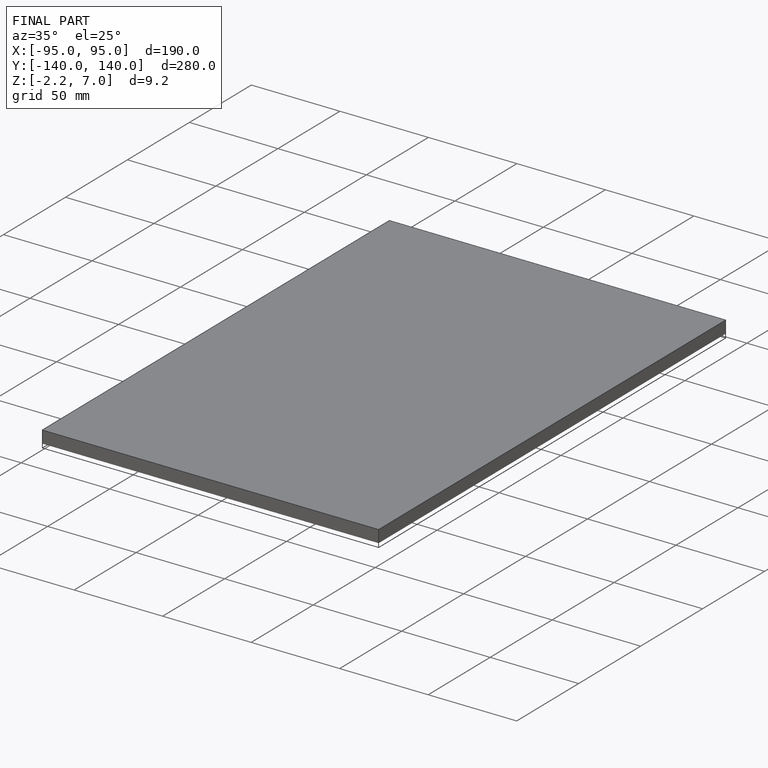
[diagram: finished part — iso view with bounding-box wireframe]
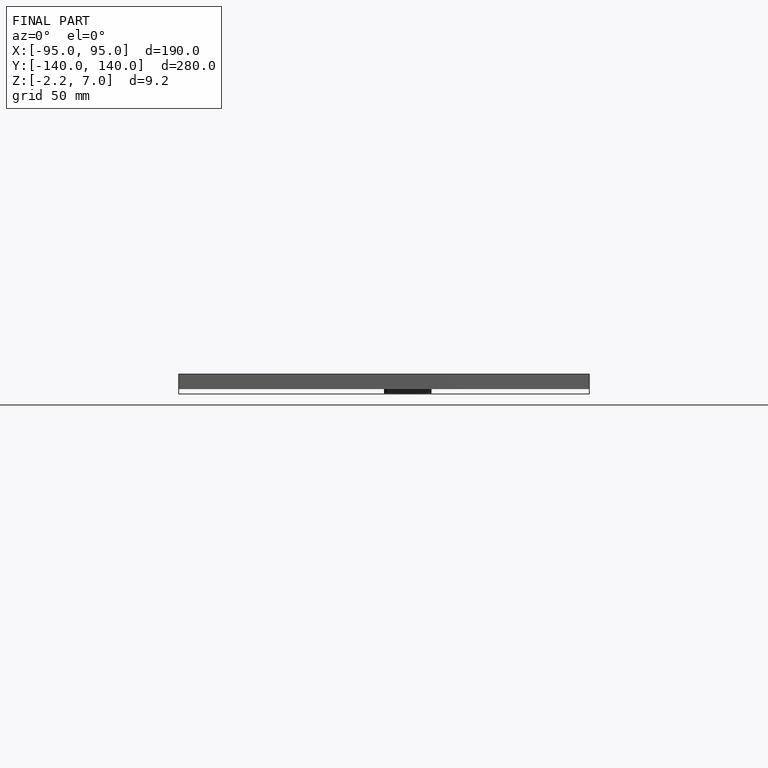
[diagram: finished part — front view with bounding-box wireframe]
